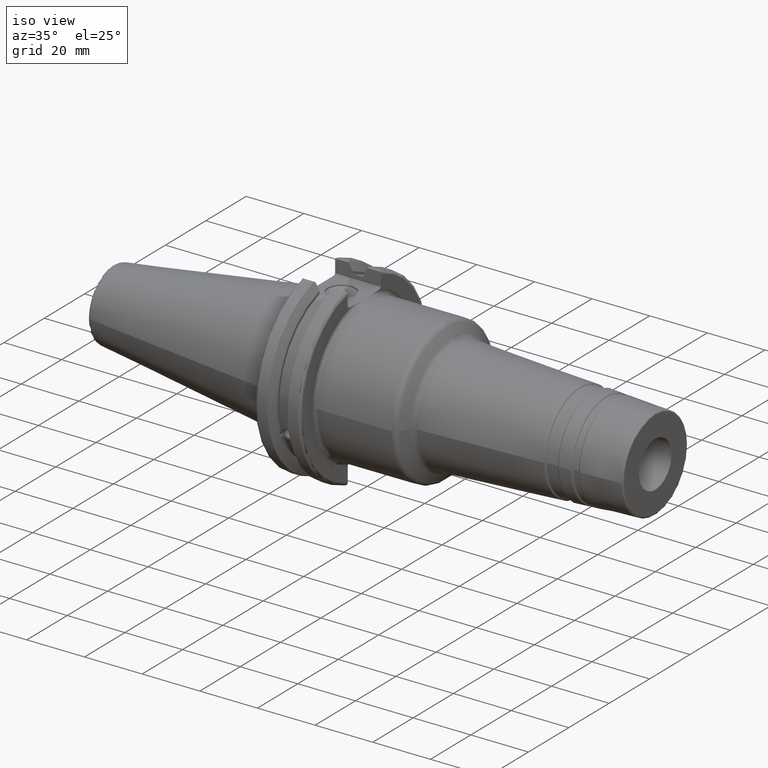
[diagram: clean part render]
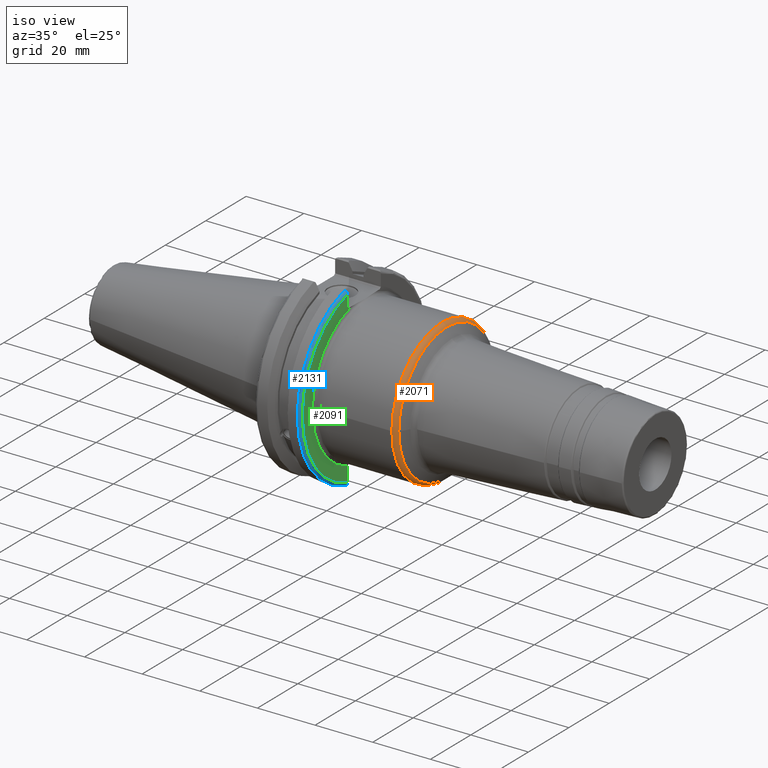
[diagram: same view with three faces highlighted in distinct colors, each labeled with its STEP entity id]
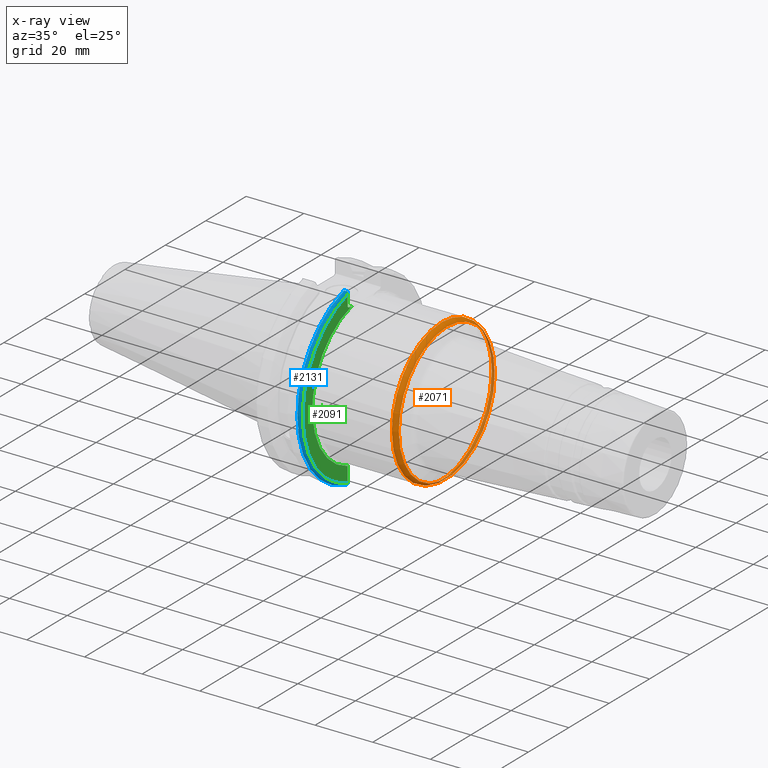
[diagram: x-ray of the same camera — body ghosted, the three highlighted faces saturated]
A machine part, iso view with three faces highlighted in distinct colors.
The next image is the same camera in x-ray (body ghosted, the three faces saturated) — at least one of them is partly hidden behind the body in this view.
Their STEP definitions:

[orange] entity #2071 — the highlighted toroidal blend (fillet) surface has major radius 22.75 mm and minor (blend) radius 2 mm.
#86=TOROIDAL_SURFACE('',#2223,22.75,2.);
#190=FACE_OUTER_BOUND('',#298,.T.);
#298=EDGE_LOOP('',(#1418,#1419,#1420,#1421,#1422,#1423,#1424,#1425));
#615=CIRCLE('',#2202,24.75);
#616=CIRCLE('',#2203,24.75);
#619=CIRCLE('',#2206,24.75);
#627=CIRCLE('',#2216,23.75);
#628=CIRCLE('',#2217,23.75);
#629=CIRCLE('',#2218,23.75);
#633=CIRCLE('',#2224,2.);
#795=VERTEX_POINT('',#3305);
#796=VERTEX_POINT('',#3306);
#797=VERTEX_POINT('',#3308);
#805=VERTEX_POINT('',#3330);
#806=VERTEX_POINT('',#3332);
#807=VERTEX_POINT('',#3334);
#1039=EDGE_CURVE('',#795,#796,#615,.T.);
#1040=EDGE_CURVE('',#797,#795,#616,.T.);
#1044=EDGE_CURVE('',#796,#797,#619,.T.);
#1053=EDGE_CURVE('',#806,#805,#627,.T.);
#1054=EDGE_CURVE('',#807,#806,#628,.T.);
#1055=EDGE_CURVE('',#805,#807,#629,.T.);
#1060=EDGE_CURVE('',#807,#796,#633,.T.);
#1418=ORIENTED_EDGE('',*,*,#1053,.T.);
#1419=ORIENTED_EDGE('',*,*,#1055,.T.);
#1420=ORIENTED_EDGE('',*,*,#1060,.T.);
#1421=ORIENTED_EDGE('',*,*,#1044,.T.);
#1422=ORIENTED_EDGE('',*,*,#1040,.T.);
#1423=ORIENTED_EDGE('',*,*,#1039,.T.);
#1424=ORIENTED_EDGE('',*,*,#1060,.F.);
#1425=ORIENTED_EDGE('',*,*,#1054,.T.);
#2071=ADVANCED_FACE('',(#190),#86,.T.);
#2202=AXIS2_PLACEMENT_3D('',#3307,#2519,#2520);
#2203=AXIS2_PLACEMENT_3D('',#3309,#2521,#2522);
#2206=AXIS2_PLACEMENT_3D('',#3314,#2528,#2529);
#2216=AXIS2_PLACEMENT_3D('',#3333,#2549,#2550);
#2217=AXIS2_PLACEMENT_3D('',#3335,#2551,#2552);
#2218=AXIS2_PLACEMENT_3D('',#3336,#2553,#2554);
#2223=AXIS2_PLACEMENT_3D('',#3345,#2564,#2565);
#2224=AXIS2_PLACEMENT_3D('',#3346,#2566,#2567);
#2519=DIRECTION('center_axis',(1.,0.,0.));
#2520=DIRECTION('ref_axis',(0.,-1.,1.83697019872103E-16));
#2521=DIRECTION('center_axis',(1.,0.,0.));
#2522=DIRECTION('ref_axis',(0.,-1.,1.83697019872103E-16));
#2528=DIRECTION('center_axis',(1.,0.,0.));
#2529=DIRECTION('ref_axis',(0.,-1.,1.83697019872103E-16));
#2549=DIRECTION('center_axis',(-1.,0.,0.));
#2550=DIRECTION('ref_axis',(0.,-1.,3.06161699786838E-17));
#2551=DIRECTION('center_axis',(-1.,0.,0.));
#2552=DIRECTION('ref_axis',(0.,-1.,3.06161699786838E-17));
#2553=DIRECTION('center_axis',(-1.,0.,0.));
#2554=DIRECTION('ref_axis',(0.,-1.,3.06161699786838E-17));
#2564=DIRECTION('center_axis',(1.,0.,0.));
#2565=DIRECTION('ref_axis',(0.,0.,-1.));
#2566=DIRECTION('center_axis',(0.,-1.,-1.22464679914735E-16));
#2567=DIRECTION('ref_axis',(0.,-1.22464679914735E-16,1.));
#3305=CARTESIAN_POINT('',(45.9115197895801,24.75,-1.51550041394485E-15));
#3306=CARTESIAN_POINT('',(45.9115197895801,-3.0310008278897E-15,24.75));
#3307=CARTESIAN_POINT('Origin',(45.9115197895801,0.,0.));
#3308=CARTESIAN_POINT('',(45.9115197895801,-24.75,-3.0310008278897E-15));
#3309=CARTESIAN_POINT('Origin',(45.9115197895801,0.,0.));
#3314=CARTESIAN_POINT('Origin',(45.9115197895801,0.,0.));
#3330=CARTESIAN_POINT('',(47.643570597149,-23.75,-2.90853614797496E-15));
#3332=CARTESIAN_POINT('',(47.643570597149,23.75,-7.27134036993741E-15));
#3333=CARTESIAN_POINT('Origin',(47.643570597149,0.,-3.6356701849687E-15));
#3334=CARTESIAN_POINT('',(47.643570597149,-2.90853614797496E-15,23.75));
#3335=CARTESIAN_POINT('Origin',(47.643570597149,0.,-3.6356701849687E-15));
#3336=CARTESIAN_POINT('Origin',(47.643570597149,0.,-3.6356701849687E-15));
#3345=CARTESIAN_POINT('Origin',(45.9115197895801,0.,0.));
#3346=CARTESIAN_POINT('Origin',(45.9115197895801,-2.78607146806023E-15,
22.75));

[blue] entity #2131 — the highlighted toroidal blend (fillet) surface has major radius 30.75 mm and minor (blend) radius 1 mm.
#99=TOROIDAL_SURFACE('',#2419,30.75,1.);
#141=B_SPLINE_CURVE_WITH_KNOTS('',3,(#3985,#3986,#3987,#3988,#3989,#3990),
 .UNSPECIFIED.,.F.,.F.,(4,2,4),(0.097738363091569,0.112311108149119,0.150804350305566),
 .UNSPECIFIED.);
#142=B_SPLINE_CURVE_WITH_KNOTS('',3,(#3992,#3993,#3994,#3995,#3996,#3997),
 .UNSPECIFIED.,.F.,.F.,(4,2,4),(0.452741154494497,0.491581665024872,0.505824174364156),
 .UNSPECIFIED.);
#143=B_SPLINE_CURVE_WITH_KNOTS('',3,(#3999,#4000,#4001,#4002,#4003,#4004,
#4005,#4006),.UNSPECIFIED.,.F.,.F.,(4,2,2,4),(-0.104180282751877,-0.0729784742461446,
-0.0343524753874984,0.),.UNSPECIFIED.);
#144=B_SPLINE_CURVE_WITH_KNOTS('',3,(#4009,#4010,#4011,#4012,#4013,#4014,
#4015,#4016),.UNSPECIFIED.,.F.,.F.,(4,2,2,4),(0.,0.0343524753874978,0.0729784742461449,
0.104180282751877),.UNSPECIFIED.);
#250=FACE_OUTER_BOUND('',#368,.T.);
#368=EDGE_LOOP('',(#1831,#1832,#1833,#1834,#1835,#1836));
#697=CIRCLE('',#2308,30.75);
#751=CIRCLE('',#2420,31.75);
#869=VERTEX_POINT('',#3528);
#870=VERTEX_POINT('',#3530);
#980=VERTEX_POINT('',#3984);
#981=VERTEX_POINT('',#3991);
#982=VERTEX_POINT('',#3998);
#983=VERTEX_POINT('',#4007);
#1138=EDGE_CURVE('',#870,#869,#697,.T.);
#1285=EDGE_CURVE('',#980,#870,#141,.T.);
#1286=EDGE_CURVE('',#869,#981,#142,.T.);
#1287=EDGE_CURVE('',#981,#982,#143,.T.);
#1288=EDGE_CURVE('',#982,#983,#751,.T.);
#1289=EDGE_CURVE('',#983,#980,#144,.T.);
#1831=ORIENTED_EDGE('',*,*,#1285,.T.);
#1832=ORIENTED_EDGE('',*,*,#1138,.T.);
#1833=ORIENTED_EDGE('',*,*,#1286,.T.);
#1834=ORIENTED_EDGE('',*,*,#1287,.T.);
#1835=ORIENTED_EDGE('',*,*,#1288,.T.);
#1836=ORIENTED_EDGE('',*,*,#1289,.T.);
#2131=ADVANCED_FACE('',(#250),#99,.T.);
#2308=AXIS2_PLACEMENT_3D('',#3531,#2745,#2746);
#2419=AXIS2_PLACEMENT_3D('',#3983,#3017,#3018);
#2420=AXIS2_PLACEMENT_3D('',#4008,#3019,#3020);
#2745=DIRECTION('center_axis',(-1.,0.,0.));
#2746=DIRECTION('ref_axis',(0.,-1.,1.60812264967664E-16));
#3017=DIRECTION('center_axis',(1.,0.,0.));
#3018=DIRECTION('ref_axis',(0.,0.,-1.));
#3019=DIRECTION('center_axis',(1.,0.,0.));
#3020=DIRECTION('ref_axis',(0.,-1.,1.60812264967664E-16));
#3528=CARTESIAN_POINT('',(19.05,-8.19,29.6392712461019));
#3530=CARTESIAN_POINT('',(19.05,-8.19,-29.6392712461019));
#3531=CARTESIAN_POINT('Origin',(19.05,0.,0.));
#3983=CARTESIAN_POINT('Origin',(18.05,0.,0.));
#3984=CARTESIAN_POINT('',(18.9058722749097,-8.19,-30.1755016258903));
#3985=CARTESIAN_POINT('Ctrl Pts',(18.9058722749097,-8.19,-30.1755016258903));
#3986=CARTESIAN_POINT('Ctrl Pts',(18.9324477233044,-8.19,-30.1299319366157));
#3987=CARTESIAN_POINT('Ctrl Pts',(18.9550700364447,-8.19,-30.0829389905409));
#3988=CARTESIAN_POINT('Ctrl Pts',(19.0210043632013,-8.19,-29.9188002007263));
#3989=CARTESIAN_POINT('Ctrl Pts',(19.05,-8.19,-29.76758205329));
#3990=CARTESIAN_POINT('Ctrl Pts',(19.05,-8.19,-29.6392712461019));
#3991=CARTESIAN_POINT('',(18.9058722749097,-8.19,30.1755016258903));
#3992=CARTESIAN_POINT('Ctrl Pts',(19.05,-8.19,29.6392712461019));
#3993=CARTESIAN_POINT('Ctrl Pts',(19.05,-8.19,29.7687396145364));
#3994=CARTESIAN_POINT('Ctrl Pts',(19.020485567083,-8.19,29.9212724384851));
#3995=CARTESIAN_POINT('Ctrl Pts',(18.9539643471756,-8.19,30.0852355256475));
#3996=CARTESIAN_POINT('Ctrl Pts',(18.9318163728133,-8.19,30.131014531546));
#3997=CARTESIAN_POINT('Ctrl Pts',(18.9058722749097,-8.19,30.1755016258903));
#3998=CARTESIAN_POINT('',(18.05,-8.67204822802685,30.5427254764662));
#3999=CARTESIAN_POINT('Ctrl Pts',(18.9058722749097,-8.19,30.1755016258903));
#4000=CARTESIAN_POINT('Ctrl Pts',(18.8574463042989,-8.2703682833078,30.2367261024977));
#4001=CARTESIAN_POINT('Ctrl Pts',(18.7926702662319,-8.34909446036477,30.2966996242308));
#4002=CARTESIAN_POINT('Ctrl Pts',(18.6396724190507,-8.48862804755884,30.4029961692546));
#4003=CARTESIAN_POINT('Ctrl Pts',(18.5184414294771,-8.56482138642532,30.4610401774263));
#4004=CARTESIAN_POINT('Ctrl Pts',(18.2983170433775,-8.6471881193939,30.5237870709558));
#4005=CARTESIAN_POINT('Ctrl Pts',(18.1645082512917,-8.67204822802685,30.5427254764662));
#4006=CARTESIAN_POINT('Ctrl Pts',(18.05,-8.67204822802685,30.5427254764662));
#4007=CARTESIAN_POINT('',(18.05,-8.67204822802686,-30.5427254764662));
#4008=CARTESIAN_POINT('Origin',(18.05,0.,0.));
#4009=CARTESIAN_POINT('Ctrl Pts',(18.05,-8.67204822802685,-30.5427254764662));
#4010=CARTESIAN_POINT('Ctrl Pts',(18.1645082512917,-8.67204822802685,-30.5427254764662));
#4011=CARTESIAN_POINT('Ctrl Pts',(18.2983170433775,-8.6471881193939,-30.5237870709558));
#4012=CARTESIAN_POINT('Ctrl Pts',(18.5184414294771,-8.56482138642532,-30.4610401774263));
#4013=CARTESIAN_POINT('Ctrl Pts',(18.6396724190507,-8.48862804755883,-30.4029961692546));
#4014=CARTESIAN_POINT('Ctrl Pts',(18.7926702662319,-8.34909446036477,-30.2966996242308));
#4015=CARTESIAN_POINT('Ctrl Pts',(18.8574463042989,-8.2703682833078,-30.2367261024977));
#4016=CARTESIAN_POINT('Ctrl Pts',(18.9058722749097,-8.19,-30.1755016258903));

[green] entity #2091 — the highlighted planar face has unit normal (1, 0, 0).
#50=PLANE('',#2307);
#210=FACE_OUTER_BOUND('',#319,.T.);
#319=EDGE_LOOP('',(#1572,#1573,#1574,#1575,#1576,#1577));
#425=LINE('',#3525,#524);
#426=LINE('',#3527,#525);
#427=LINE('',#3529,#526);
#428=LINE('',#3532,#527);
#524=VECTOR('',#2742,10.);
#525=VECTOR('',#2743,10.);
#526=VECTOR('',#2744,10.);
#527=VECTOR('',#2747,10.);
#695=CIRCLE('',#2305,25.75);
#697=CIRCLE('',#2308,30.75);
#863=VERTEX_POINT('',#3487);
#865=VERTEX_POINT('',#3499);
#867=VERTEX_POINT('',#3524);
#868=VERTEX_POINT('',#3526);
#869=VERTEX_POINT('',#3528);
#870=VERTEX_POINT('',#3530);
#1131=EDGE_CURVE('',#863,#865,#695,.T.);
#1135=EDGE_CURVE('',#863,#867,#425,.T.);
#1136=EDGE_CURVE('',#868,#867,#426,.T.);
#1137=EDGE_CURVE('',#868,#869,#427,.T.);
#1138=EDGE_CURVE('',#870,#869,#697,.T.);
#1139=EDGE_CURVE('',#870,#865,#428,.T.);
#1572=ORIENTED_EDGE('',*,*,#1131,.F.);
#1573=ORIENTED_EDGE('',*,*,#1135,.T.);
#1574=ORIENTED_EDGE('',*,*,#1136,.F.);
#1575=ORIENTED_EDGE('',*,*,#1137,.T.);
#1576=ORIENTED_EDGE('',*,*,#1138,.F.);
#1577=ORIENTED_EDGE('',*,*,#1139,.T.);
#2091=ADVANCED_FACE('',(#210),#50,.T.);
#2305=AXIS2_PLACEMENT_3D('',#3500,#2736,#2737);
#2307=AXIS2_PLACEMENT_3D('',#3523,#2740,#2741);
#2308=AXIS2_PLACEMENT_3D('',#3531,#2745,#2746);
#2736=DIRECTION('center_axis',(1.,0.,0.));
#2737=DIRECTION('ref_axis',(0.,6.12323399573677E-17,1.));
#2740=DIRECTION('center_axis',(1.,0.,0.));
#2741=DIRECTION('ref_axis',(0.,0.,-1.));
#2742=DIRECTION('',(0.,-1.,0.));
#2743=DIRECTION('',(0.,0.70710678118655,-0.707106781186545));
#2744=DIRECTION('',(0.,0.,1.));
#2745=DIRECTION('center_axis',(-1.,0.,0.));
#2746=DIRECTION('ref_axis',(0.,-1.,1.60812264967664E-16));
#2747=DIRECTION('',(0.,0.,1.));
#3487=CARTESIAN_POINT('',(19.05,-6.16948133962654,25.));
#3499=CARTESIAN_POINT('',(19.05,-8.19,-24.4128326910254));
#3500=CARTESIAN_POINT('Origin',(19.05,0.,0.));
#3523=CARTESIAN_POINT('Origin',(19.05,0.,0.));
#3524=CARTESIAN_POINT('',(19.05,-7.69,25.));
#3525=CARTESIAN_POINT('',(19.05,0.,25.));
#3526=CARTESIAN_POINT('',(19.05,-8.19,25.5));
#3527=CARTESIAN_POINT('',(19.05,0.357500000000014,16.9525));
#3528=CARTESIAN_POINT('',(19.05,-8.19,29.6392712461019));
#3529=CARTESIAN_POINT('',(19.05,-8.19,12.5));
#3530=CARTESIAN_POINT('',(19.05,-8.19,-29.6392712461019));
#3531=CARTESIAN_POINT('Origin',(19.05,0.,0.));
#3532=CARTESIAN_POINT('',(19.05,-8.19,-11.3));